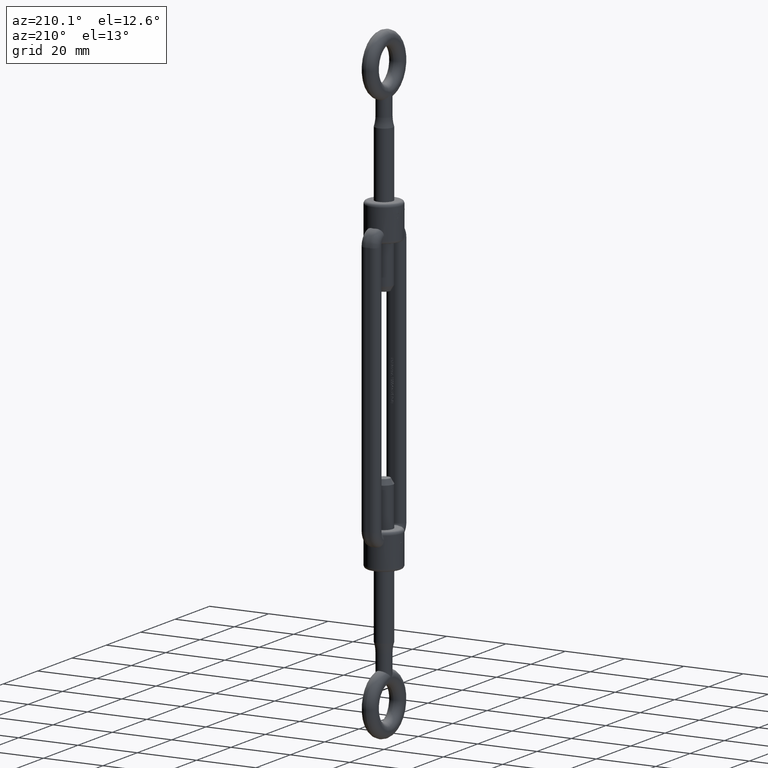
[diagram: clean part render]
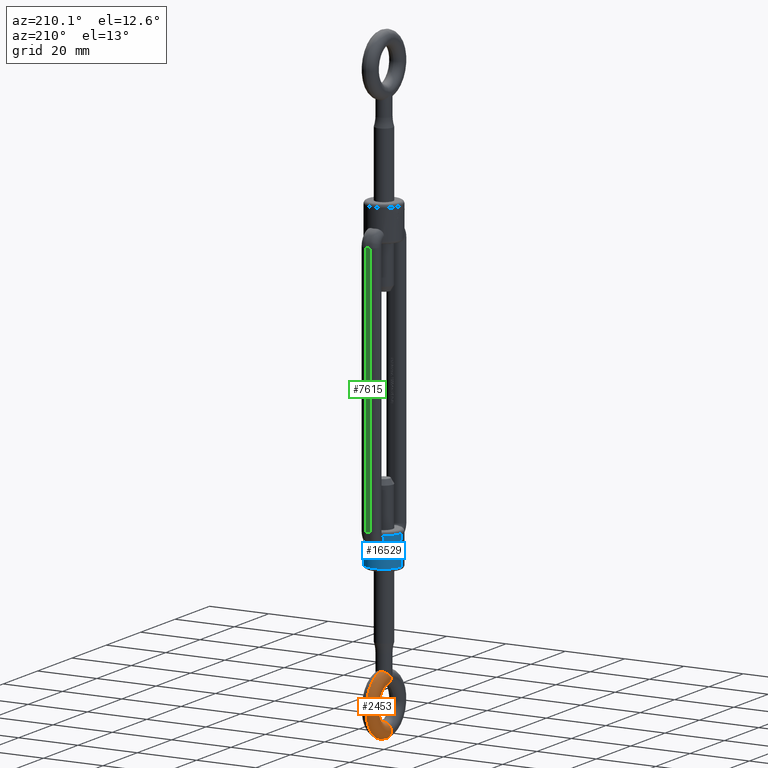
[diagram: same view with three faces highlighted in distinct colors, each labeled with its STEP entity id]
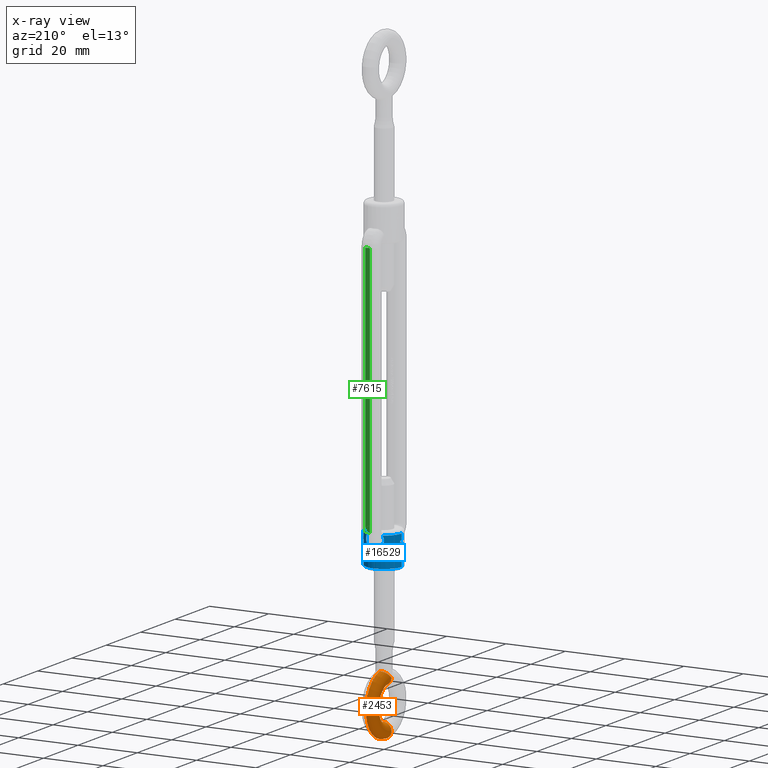
[diagram: x-ray of the same camera — body ghosted, the three highlighted faces saturated]
A machine part, auxiliary view with three faces highlighted in distinct colors.
The next image is the same camera in x-ray (body ghosted, the three faces saturated) — at least one of them is partly hidden behind the body in this view.
Their STEP definitions:

[orange] entity #2453 — the highlighted toroidal blend (fillet) surface has major radius 8 mm and minor (blend) radius 2.5 mm.
#222 = CARTESIAN_POINT ( 'NONE',  ( -2.327547646540467400, -20.56205276320210400, -0.9307047033960486000 ) ) ;
#398 = CIRCLE ( 'NONE', #6131, 5.500000000000000000 ) ;
#546 = DIRECTION ( 'NONE',  ( -0.0000000000000000000, 1.423099621949589700E-016, -1.000000000000000000 ) ) ;
#1265 = ORIENTED_EDGE ( 'NONE', *, *, #19831, .F. ) ;
#1370 = VERTEX_POINT ( 'NONE', #3618 ) ;
#1691 = EDGE_LOOP ( 'NONE', ( #1265, #4481, #13903, #19373, #2794 ) ) ;
#1837 = CARTESIAN_POINT ( 'NONE',  ( 1.242455925723093600E-026, -18.50000000000000400, -2.500000000000001300 ) ) ;
#1910 = CARTESIAN_POINT ( 'NONE',  ( -0.9647630627463545900, -19.41358719484026100, -2.310989940120803600 ) ) ;
#1917 = AXIS2_PLACEMENT_3D ( 'NONE', #17241, #546, #14643 ) ;
#2021 = CARTESIAN_POINT ( 'NONE',  ( 6.735557395310442000E-016, -16.00000000000000400, -8.323179977728349900E-016 ) ) ;
#2045 = CARTESIAN_POINT ( 'NONE',  ( -2.166660555568894300, -20.43331326164225800, -1.260663051247829400 ) ) ;
#2453 = ADVANCED_FACE ( 'NONE', ( #5384 ), #15342, .T. ) ;
#2720 = DIRECTION ( 'NONE',  ( -1.224646799147353900E-016, 1.000000000000000000, 0.0000000000000000000 ) ) ;
#2794 = ORIENTED_EDGE ( 'NONE', *, *, #5189, .F. ) ;
#2873 = CIRCLE ( 'NONE', #5161, 2.499999999999998700 ) ;
#2945 = VERTEX_POINT ( 'NONE', #3779 ) ;
#3268 = CIRCLE ( 'NONE', #13405, 2.500000000000000000 ) ;
#3618 = CARTESIAN_POINT ( 'NONE',  ( 0.0000000000000000000, -5.000000000000000900, -8.323179977728334100E-016 ) ) ;
#3779 = CARTESIAN_POINT ( 'NONE',  ( 0.0000000000000000000, -2.168404344971008900E-016, 3.557749054873973800E-016 ) ) ;
#4382 = DIRECTION ( 'NONE',  ( 1.000000000000000000, 1.224646799147353200E-016, 1.742794396888373400E-032 ) ) ;
#4481 = ORIENTED_EDGE ( 'NONE', *, *, #15393, .T. ) ;
#5161 = AXIS2_PLACEMENT_3D ( 'NONE', #20163, #4382, #2720 ) ;
#5189 = EDGE_CURVE ( 'NONE', #18958, #13609, #2873, .T. ) ;
#5384 = FACE_OUTER_BOUND ( 'NONE', #1691, .T. ) ;
#5736 = DIRECTION ( 'NONE',  ( 0.0000000000000000000, 0.0000000000000000000, 1.000000000000000000 ) ) ;
#5809 = DIRECTION ( 'NONE',  ( -1.000000000000000000, 0.0000000000000000000, 0.0000000000000000000 ) ) ;
#5879 = CARTESIAN_POINT ( 'NONE',  ( 0.0000000000000000000, -2.500000000000000400, 0.0000000000000000000 ) ) ;
#6131 = AXIS2_PLACEMENT_3D ( 'NONE', #13466, #7234, #15089 ) ;
#6440 = CARTESIAN_POINT ( 'NONE',  ( 0.0000000000000000000, -10.50000000000000000, -1.138479697559672000E-015 ) ) ;
#6626 = CARTESIAN_POINT ( 'NONE',  ( -0.5501729161815849300, -19.03616291803431100, -2.456232652786906300 ) ) ;
#7234 = DIRECTION ( 'NONE',  ( -0.0000000000000000000, 1.423099621949589700E-016, -1.000000000000000000 ) ) ;
#8026 = CARTESIAN_POINT ( 'NONE',  ( -2.500000000000000000, -20.69803902718557300, -2.306285314645109500E-015 ) ) ;
#8443 = DIRECTION ( 'NONE',  ( -0.0000000000000000000, 1.423099621949589700E-016, -1.000000000000000000 ) ) ;
#8672 = VERTEX_POINT ( 'NONE', #17648 ) ;
#9562 = CARTESIAN_POINT ( 'NONE',  ( 1.242455925723093600E-026, -18.50000000000000400, -2.500000000000001300 ) ) ;
#9854 = EDGE_CURVE ( 'NONE', #2945, #1370, #3268, .T. ) ;
#9891 = CARTESIAN_POINT ( 'NONE',  ( -1.739907591435805800, -20.08380192604825300, -1.802400801215942700 ) ) ;
#10025 = CARTESIAN_POINT ( 'NONE',  ( -0.2738770264753495600, -18.77375606901432200, -2.500000000000001300 ) ) ;
#10051 = DIRECTION ( 'NONE',  ( 0.0000000000000000000, 1.000000000000000000, 1.423099621949589700E-016 ) ) ;
#11359 = CARTESIAN_POINT ( 'NONE',  ( -2.390347946638955000, -20.61171276969795900, -0.7563906731936904700 ) ) ;
#11488 = EDGE_CURVE ( 'NONE', #13609, #1370, #398, .T. ) ;
#13067 = CARTESIAN_POINT ( 'NONE',  ( -1.366254003451748100, -19.76679053576814800, -2.099151008986415600 ) ) ;
#13197 = CARTESIAN_POINT ( 'NONE',  ( -2.071222377699466900, -20.35632469518800400, -1.410532617310862800 ) ) ;
#13405 = AXIS2_PLACEMENT_3D ( 'NONE', #5879, #5809, #5736 ) ;
#13466 = CARTESIAN_POINT ( 'NONE',  ( 0.0000000000000000000, -10.50000000000000000, -8.323179977728336100E-016 ) ) ;
#13609 = VERTEX_POINT ( 'NONE', #2021 ) ;
#13903 = ORIENTED_EDGE ( 'NONE', *, *, #9854, .T. ) ;
#14643 = DIRECTION ( 'NONE',  ( 0.0000000000000000000, 1.000000000000000000, 1.423099621949589700E-016 ) ) ;
#15026 = B_SPLINE_CURVE_WITH_KNOTS ( 'NONE', 3,
 ( #8026, #19233, #19448, #11359, #222, #2045, #13197, #17717, #9891, #17984, #13067, #16287, #1910, #6626, #10025, #1837 ),
 .UNSPECIFIED., .F., .F.,
 ( 4, 2, 2, 2, 2, 2, 2, 4 ),
 ( 0.004619430297724310400, 0.005200282634343219100, 0.005781134970962127800, 0.006361987307581036500, 0.006942839644199944400, 0.007523691980818852200, 0.008104544317437761800, 0.009266248990675577500 ),
 .UNSPECIFIED. ) ;
#15089 = DIRECTION ( 'NONE',  ( 0.0000000000000000000, 1.000000000000000000, 1.423099621949589700E-016 ) ) ;
#15130 = CIRCLE ( 'NONE', #1917, 10.50000000000000000 ) ;
#15342 = TOROIDAL_SURFACE ( 'NONE', #20265, 8.000000000000000000, 2.500000000000000000 ) ;
#15393 = EDGE_CURVE ( 'NONE', #8672, #2945, #15130, .T. ) ;
#16287 = CARTESIAN_POINT ( 'NONE',  ( -1.101985763522318700, -19.53576864438944200, -2.249158139720449400 ) ) ;
#17241 = CARTESIAN_POINT ( 'NONE',  ( 0.0000000000000000000, -10.50000000000000000, -1.138479697559672000E-015 ) ) ;
#17648 = CARTESIAN_POINT ( 'NONE',  ( -2.500000000000000000, -20.69803902718557300, -2.306285314645109500E-015 ) ) ;
#17717 = CARTESIAN_POINT ( 'NONE',  ( -1.858608092154476300, -20.18221606494365300, -1.680815386102461100 ) ) ;
#17984 = CARTESIAN_POINT ( 'NONE',  ( -1.494314538937532100, -19.87655429876848200, -2.010709112149176900 ) ) ;
#18958 = VERTEX_POINT ( 'NONE', #9562 ) ;
#19233 = CARTESIAN_POINT ( 'NONE',  ( -2.500000000000000400, -20.69803902718557600, -0.1921724619304240600 ) ) ;
#19373 = ORIENTED_EDGE ( 'NONE', *, *, #11488, .F. ) ;
#19448 = CARTESIAN_POINT ( 'NONE',  ( -2.477034110257168900, -20.68006452606093500, -0.3875463496382761100 ) ) ;
#19831 = EDGE_CURVE ( 'NONE', #8672, #18958, #15026, .T. ) ;
#20163 = CARTESIAN_POINT ( 'NONE',  ( 9.797174393178825700E-016, -18.50000000000000400, -2.276959395119343900E-015 ) ) ;
#20265 = AXIS2_PLACEMENT_3D ( 'NONE', #6440, #8443, #10051 ) ;

[blue] entity #16529 — the highlighted cylindrical surface (edge-blend (fillet) strip) has radius 6 mm, axis along (0, 0, 1).
#27 = CARTESIAN_POINT ( 'NONE',  ( 3.006789111494902100, 5.192295254808551700, -45.43910314158556200 ) ) ;
#66 = ORIENTED_EDGE ( 'NONE', *, *, #15289, .T. ) ;
#127 = DIRECTION ( 'NONE',  ( 0.0000000000000000000, 0.0000000000000000000, -1.000000000000000000 ) ) ;
#258 = VERTEX_POINT ( 'NONE', #5284 ) ;
#455 = EDGE_CURVE ( 'NONE', #18434, #258, #9113, .T. ) ;
#645 = ORIENTED_EDGE ( 'NONE', *, *, #3247, .T. ) ;
#702 = CARTESIAN_POINT ( 'NONE',  ( -2.960064717902252800, 5.219035171797260700, -45.97723860830461000 ) ) ;
#1077 = CARTESIAN_POINT ( 'NONE',  ( 0.7500000000000015500, 5.952940449895337800, -47.64159737816589800 ) ) ;
#1309 = B_SPLINE_CURVE_WITH_KNOTS ( 'NONE', 3,
 ( #17066, #4629, #4696, #27, #12492, #2977, #14062, #17270, #18837, #8307, #3311, #16102, #3596, #19254, #1856, #8107, #12819, #16236 ),
 .UNSPECIFIED., .F., .F.,
 ( 4, 2, 2, 2, 2, 2, 2, 2, 4 ),
 ( 2.166501582897853700E-007, 0.001282598035847469100, 0.001923788728692069000, 0.002564979421536669100, 0.002885574767958960000, 0.003206170114381251400, 0.003847360807225832800, 0.004488551500070414200, 0.005129742192914996100 ),
 .UNSPECIFIED. ) ;
#1353 = CARTESIAN_POINT ( 'NONE',  ( -0.2467301389833180800, 6.000139150529713000, -47.62342106420450700 ) ) ;
#1427 = CARTESIAN_POINT ( 'NONE',  ( 0.2534520981116371000, 5.999858966772884500, -47.62353043668468900 ) ) ;
#1579 = DIRECTION ( 'NONE',  ( 0.0000000000000000000, 0.0000000000000000000, 1.000000000000000000 ) ) ;
#1617 = LINE ( 'NONE', #11954, #6839 ) ;
#1643 = CARTESIAN_POINT ( 'NONE',  ( 2.647647802095501200, 5.384232639481597400, -44.00000000000000000 ) ) ;
#1856 = CARTESIAN_POINT ( 'NONE',  ( 1.586965489537352800, 5.790106175979371300, -47.54096269680395900 ) ) ;
#1939 = CIRCLE ( 'NONE', #12197, 6.000000000000008900 ) ;
#2175 = EDGE_CURVE ( 'NONE', #19600, #7028, #1939, .T. ) ;
#2211 = DIRECTION ( 'NONE',  ( -1.000000000000000000, 0.0000000000000000000, 0.0000000000000000000 ) ) ;
#2220 = CARTESIAN_POINT ( 'NONE',  ( -1.780751197024107900, 5.732795511912034000, -47.46783385374885000 ) ) ;
#2428 = CARTESIAN_POINT ( 'NONE',  ( -2.139499387634895100, 5.608793237177804900, -47.26842114431988800 ) ) ;
#2610 = CARTESIAN_POINT ( 'NONE',  ( -5.933009100570255400, 0.8940934025875867400, -46.00000000000000000 ) ) ;
#2735 = DIRECTION ( 'NONE',  ( 1.000000000000000000, 0.0000000000000000000, 0.0000000000000000000 ) ) ;
#2736 = VERTEX_POINT ( 'NONE', #18402 ) ;
#2977 = CARTESIAN_POINT ( 'NONE',  ( 2.945415158984745500, 5.227405318499184400, -46.08118356738097500 ) ) ;
#3247 = EDGE_CURVE ( 'NONE', #14918, #5177, #17067, .T. ) ;
#3311 = CARTESIAN_POINT ( 'NONE',  ( 2.518899704307321600, 5.446201719094948300, -46.91376766499574600 ) ) ;
#3596 = CARTESIAN_POINT ( 'NONE',  ( 2.143290492561867700, 5.607358268053872100, -47.26585826454374500 ) ) ;
#3730 = ORIENTED_EDGE ( 'NONE', *, *, #12701, .T. ) ;
#3765 = EDGE_CURVE ( 'NONE', #10725, #2736, #18501, .T. ) ;
#3947 = CARTESIAN_POINT ( 'NONE',  ( -0.7500000000000015500, 5.952940449895337800, -47.64159737816589800 ) ) ;
#4122 = FACE_OUTER_BOUND ( 'NONE', #12958, .T. ) ;
#4184 = CIRCLE ( 'NONE', #20346, 6.000000000000008900 ) ;
#4542 = CARTESIAN_POINT ( 'NONE',  ( -0.7500000000000015500, 5.952940449895337800, -47.64159737816589800 ) ) ;
#4594 = CIRCLE ( 'NONE', #4947, 6.000000000000008900 ) ;
#4629 = CARTESIAN_POINT ( 'NONE',  ( 2.800019534227934100, 5.309305215520879500, -44.39460956904219600 ) ) ;
#4696 = CARTESIAN_POINT ( 'NONE',  ( 2.937398188807675700, 5.232067944592823300, -44.79533901303742700 ) ) ;
#4880 = CARTESIAN_POINT ( 'NONE',  ( 0.0000000000000000000, -1.450913607213289900E-017, -46.62820512820513100 ) ) ;
#4947 = AXIS2_PLACEMENT_3D ( 'NONE', #9657, #127, #12652 ) ;
#5177 = VERTEX_POINT ( 'NONE', #18722 ) ;
#5284 = CARTESIAN_POINT ( 'NONE',  ( -2.647647802106354800, 5.384232639476260300, -44.00000000000000000 ) ) ;
#5405 = CARTESIAN_POINT ( 'NONE',  ( -6.000000000000008900, 7.202789434162801200E-016, 43.00000000000000000 ) ) ;
#5472 = DIRECTION ( 'NONE',  ( 0.0000000000000000000, 0.0000000000000000000, -1.000000000000000000 ) ) ;
#5481 = CARTESIAN_POINT ( 'NONE',  ( -2.937028009429673700, 5.232118848946893900, -46.08331505875864300 ) ) ;
#5617 = CARTESIAN_POINT ( 'NONE',  ( -3.006750691557123800, 5.192315499144678300, -45.44067078650117300 ) ) ;
#5800 = ORIENTED_EDGE ( 'NONE', *, *, #12941, .F. ) ;
#6125 = CARTESIAN_POINT ( 'NONE',  ( 0.0000000000000000000, -1.450913607213289900E-017, -46.00000000000000000 ) ) ;
#6217 = VERTEX_POINT ( 'NONE', #15492 ) ;
#6281 = AXIS2_PLACEMENT_3D ( 'NONE', #17107, #20310, #2735 ) ;
#6315 = VERTEX_POINT ( 'NONE', #6435 ) ;
#6435 = CARTESIAN_POINT ( 'NONE',  ( -6.000000000000008900, 7.202789434162801200E-016, -44.00000000000000000 ) ) ;
#6691 = EDGE_CURVE ( 'NONE', #12181, #18434, #8447, .T. ) ;
#6839 = VECTOR ( 'NONE', #13244, 1000.000000000000000 ) ;
#7028 = VERTEX_POINT ( 'NONE', #8767 ) ;
#7507 = CARTESIAN_POINT ( 'NONE',  ( -0.7500000000000015500, 5.952940449895337800, -47.64159737816589800 ) ) ;
#8107 = CARTESIAN_POINT ( 'NONE',  ( 1.179724464645115500, 5.886598269086720200, -47.63311720288319200 ) ) ;
#8189 = LINE ( 'NONE', #17261, #20302 ) ;
#8307 = CARTESIAN_POINT ( 'NONE',  ( 2.583220519880358600, 5.415825609758909900, -46.83352028015509200 ) ) ;
#8374 = VERTEX_POINT ( 'NONE', #10439 ) ;
#8447 = B_SPLINE_CURVE_WITH_KNOTS ( 'NONE', 3,
 ( #1077, #15396, #1427, #1353, #9341, #4542 ),
 .UNSPECIFIED., .F., .F.,
 ( 4, 2, 4 ),
 ( 0.02225280933312096000, 0.02300359912622378800, 0.02375438891932661300 ),
 .UNSPECIFIED. ) ;
#8669 = CARTESIAN_POINT ( 'NONE',  ( -2.585578421057397800, 5.416492610243453000, -46.84347446244593300 ) ) ;
#8740 = CARTESIAN_POINT ( 'NONE',  ( -0.9651402668200392800, 5.925835324038105900, -47.65189275775181000 ) ) ;
#8767 = CARTESIAN_POINT ( 'NONE',  ( 6.000000000000008900, -1.450913607213289900E-017, -44.00000000000000000 ) ) ;
#9113 = B_SPLINE_CURVE_WITH_KNOTS ( 'NONE', 3,
 ( #3947, #8740, #15073, #19818, #2220, #2428, #16540, #8669, #19758, #11836, #13386, #5481, #702, #13325, #5617, #18304, #13527, #16729 ),
 .UNSPECIFIED., .F., .F.,
 ( 4, 2, 2, 2, 2, 2, 2, 2, 4 ),
 ( 1.989487527446713900E-007, 0.0006422322189905869100, 0.001284265489228429200, 0.001926298759466271500, 0.002568332029704113700, 0.002889348664823034200, 0.003210365299941954700, 0.003852398570179795200, 0.005136465110655476700 ),
 .UNSPECIFIED. ) ;
#9341 = CARTESIAN_POINT ( 'NONE',  ( -0.4996251663170926400, 5.984484713917914300, -47.62961587424001000 ) ) ;
#9657 = CARTESIAN_POINT ( 'NONE',  ( 0.0000000000000000000, -1.450913607213289900E-017, -44.00000000000000000 ) ) ;
#9669 = DIRECTION ( 'NONE',  ( -0.0000000000000000000, -0.0000000000000000000, 1.000000000000000000 ) ) ;
#9944 = AXIS2_PLACEMENT_3D ( 'NONE', #6125, #12655, #10994 ) ;
#10439 = CARTESIAN_POINT ( 'NONE',  ( 6.000000000000008900, -1.450913607213289900E-017, -53.99999999999999300 ) ) ;
#10565 = ORIENTED_EDGE ( 'NONE', *, *, #19951, .F. ) ;
#10725 = VERTEX_POINT ( 'NONE', #13461 ) ;
#10994 = DIRECTION ( 'NONE',  ( -0.9928495050826118300, -0.1193727785435720200, 0.0000000000000000000 ) ) ;
#11103 = ORIENTED_EDGE ( 'NONE', *, *, #18947, .F. ) ;
#11509 = LINE ( 'NONE', #15331, #11992 ) ;
#11762 = CARTESIAN_POINT ( 'NONE',  ( 0.0000000000000000000, -1.450913607213289900E-017, -44.00000000000000000 ) ) ;
#11836 = CARTESIAN_POINT ( 'NONE',  ( -2.838942773334228100, 5.286108378082667000, -46.38542160062279900 ) ) ;
#11954 = CARTESIAN_POINT ( 'NONE',  ( 6.000000000000008900, -1.450913607213289900E-017, 43.00000000000000000 ) ) ;
#11992 = VECTOR ( 'NONE', #18607, 1000.000000000000000 ) ;
#12181 = VERTEX_POINT ( 'NONE', #16629 ) ;
#12187 = CARTESIAN_POINT ( 'NONE',  ( 0.0000000000000000000, -1.450913607213289900E-017, -53.99999999999999300 ) ) ;
#12197 = AXIS2_PLACEMENT_3D ( 'NONE', #11762, #5472, #2211 ) ;
#12492 = CARTESIAN_POINT ( 'NONE',  ( 3.006490657149720700, 5.192518729010240400, -45.65338916288283900 ) ) ;
#12652 = DIRECTION ( 'NONE',  ( -1.000000000000000000, 0.0000000000000000000, 0.0000000000000000000 ) ) ;
#12655 = DIRECTION ( 'NONE',  ( -0.0000000000000000000, -0.0000000000000000000, 1.000000000000000000 ) ) ;
#12701 = EDGE_CURVE ( 'NONE', #6315, #258, #4594, .T. ) ;
#12725 = DIRECTION ( 'NONE',  ( -0.9998881421979226600, -0.01495670725751207000, 0.0000000000000000000 ) ) ;
#12819 = CARTESIAN_POINT ( 'NONE',  ( 0.9650953604838129500, 5.925840981704809000, -47.65189060879235700 ) ) ;
#12941 = EDGE_CURVE ( 'NONE', #8374, #7028, #1617, .T. ) ;
#12958 = EDGE_LOOP ( 'NONE', ( #66, #20227, #10565, #13129, #645, #13769, #3730, #17044, #18318, #11103, #16602, #5800 ) ) ;
#13129 = ORIENTED_EDGE ( 'NONE', *, *, #15641, .T. ) ;
#13244 = DIRECTION ( 'NONE',  ( -0.0000000000000000000, -0.0000000000000000000, 1.000000000000000000 ) ) ;
#13325 = CARTESIAN_POINT ( 'NONE',  ( -3.006026016382793700, 5.192788520952488400, -45.65923896244575500 ) ) ;
#13386 = CARTESIAN_POINT ( 'NONE',  ( -2.876389095800481900, 5.265699093875371200, -46.28729861658225500 ) ) ;
#13461 = CARTESIAN_POINT ( 'NONE',  ( -6.000000000000008900, 7.202789434162801200E-016, -53.99999999999999300 ) ) ;
#13527 = CARTESIAN_POINT ( 'NONE',  ( -2.800668084150551800, 5.308986296950156900, -44.39628917195786100 ) ) ;
#13769 = ORIENTED_EDGE ( 'NONE', *, *, #17472, .T. ) ;
#14062 = CARTESIAN_POINT ( 'NONE',  ( 2.885886852020087500, 5.261354204090056700, -46.28475913905556600 ) ) ;
#14367 = AXIS2_PLACEMENT_3D ( 'NONE', #4880, #9669, #12725 ) ;
#14824 = VECTOR ( 'NONE', #16396, 1000.000000000000000 ) ;
#14918 = VERTEX_POINT ( 'NONE', #2610 ) ;
#15073 = CARTESIAN_POINT ( 'NONE',  ( -1.175002378236738000, 5.887585423306048500, -47.63384109583812200 ) ) ;
#15289 = EDGE_CURVE ( 'NONE', #8374, #10725, #4184, .T. ) ;
#15331 = CARTESIAN_POINT ( 'NONE',  ( -6.000000000000008900, 7.202789434162801200E-016, 43.00000000000000000 ) ) ;
#15396 = CARTESIAN_POINT ( 'NONE',  ( 0.5023254682714813900, 5.984144507849528300, -47.62974509520837800 ) ) ;
#15492 = CARTESIAN_POINT ( 'NONE',  ( -5.933009100570254500, 0.8940934025875849600, -46.62820512820513100 ) ) ;
#15641 = EDGE_CURVE ( 'NONE', #6217, #14918, #8189, .T. ) ;
#16092 = CYLINDRICAL_SURFACE ( 'NONE', #6281, 6.000000000000008900 ) ;
#16102 = CARTESIAN_POINT ( 'NONE',  ( 2.307299012493389000, 5.540780342936116700, -47.13899643784969800 ) ) ;
#16236 = CARTESIAN_POINT ( 'NONE',  ( 0.7500000000000015500, 5.952940449895337800, -47.64159737816589800 ) ) ;
#16396 = DIRECTION ( 'NONE',  ( -0.0000000000000000000, -0.0000000000000000000, 1.000000000000000000 ) ) ;
#16529 = ADVANCED_FACE ( 'NONE', ( #4122 ), #16092, .T. ) ;
#16540 = CARTESIAN_POINT ( 'NONE',  ( -2.304958704577128700, 5.541730175536673500, -47.14079233760907800 ) ) ;
#16602 = ORIENTED_EDGE ( 'NONE', *, *, #2175, .T. ) ;
#16629 = CARTESIAN_POINT ( 'NONE',  ( 0.7500000000000015500, 5.952940449895337800, -47.64159737816589800 ) ) ;
#16729 = CARTESIAN_POINT ( 'NONE',  ( -2.647647802106354800, 5.384232639476260300, -44.00000000000000000 ) ) ;
#17044 = ORIENTED_EDGE ( 'NONE', *, *, #455, .F. ) ;
#17066 = CARTESIAN_POINT ( 'NONE',  ( 2.647647802095501200, 5.384232639481597400, -44.00000000000000000 ) ) ;
#17067 = CIRCLE ( 'NONE', #9944, 6.000000000000010700 ) ;
#17107 = CARTESIAN_POINT ( 'NONE',  ( 0.0000000000000000000, -1.450913607213289900E-017, 43.00000000000000000 ) ) ;
#17261 = CARTESIAN_POINT ( 'NONE',  ( -5.933009100570254500, 0.8940934025875849600, -46.62820512820513100 ) ) ;
#17270 = CARTESIAN_POINT ( 'NONE',  ( 2.751915404549499100, 5.331932984584224900, -46.57028028939991800 ) ) ;
#17472 = EDGE_CURVE ( 'NONE', #5177, #6315, #11509, .T. ) ;
#17742 = CIRCLE ( 'NONE', #14367, 6.000000000000009800 ) ;
#18304 = CARTESIAN_POINT ( 'NONE',  ( -2.938385424695630000, 5.231505610365313300, -44.80068779009798200 ) ) ;
#18318 = ORIENTED_EDGE ( 'NONE', *, *, #6691, .F. ) ;
#18402 = CARTESIAN_POINT ( 'NONE',  ( -6.000000000000008900, 7.202789434162801200E-016, -46.62820512820513100 ) ) ;
#18434 = VERTEX_POINT ( 'NONE', #7507 ) ;
#18501 = LINE ( 'NONE', #5405, #14824 ) ;
#18526 = DIRECTION ( 'NONE',  ( -0.0000000000000000000, -0.0000000000000000000, 1.000000000000000000 ) ) ;
#18607 = DIRECTION ( 'NONE',  ( -0.0000000000000000000, -0.0000000000000000000, 1.000000000000000000 ) ) ;
#18722 = CARTESIAN_POINT ( 'NONE',  ( -6.000000000000008900, 7.202789434162801200E-016, -46.00000000000000000 ) ) ;
#18837 = CARTESIAN_POINT ( 'NONE',  ( 2.699534470347790800, 5.358797340173955700, -46.66224462245956800 ) ) ;
#18947 = EDGE_CURVE ( 'NONE', #19600, #12181, #1309, .T. ) ;
#19254 = CARTESIAN_POINT ( 'NONE',  ( 1.783913712234231900, 5.731824556728939900, -47.46652278982664800 ) ) ;
#19600 = VERTEX_POINT ( 'NONE', #1643 ) ;
#19758 = CARTESIAN_POINT ( 'NONE',  ( -2.705202318175254500, 5.356494360880864400, -46.66855899341486900 ) ) ;
#19818 = CARTESIAN_POINT ( 'NONE',  ( -1.584637498173551200, 5.790787226705029800, -47.54182828196157100 ) ) ;
#19951 = EDGE_CURVE ( 'NONE', #6217, #2736, #17742, .T. ) ;
#20227 = ORIENTED_EDGE ( 'NONE', *, *, #3765, .T. ) ;
#20254 = DIRECTION ( 'NONE',  ( 1.000000000000000000, 0.0000000000000000000, 0.0000000000000000000 ) ) ;
#20302 = VECTOR ( 'NONE', #1579, 1000.000000000000000 ) ;
#20310 = DIRECTION ( 'NONE',  ( -0.0000000000000000000, -0.0000000000000000000, 1.000000000000000000 ) ) ;
#20346 = AXIS2_PLACEMENT_3D ( 'NONE', #12187, #18526, #20254 ) ;

[green] entity #7615 — the highlighted planar face has unit normal (0, 1, 0).
#381 = CARTESIAN_POINT ( 'NONE',  ( -0.7500000000000015500, 9.499999999999987600, 42.49999999999998600 ) ) ;
#602 = EDGE_CURVE ( 'NONE', #3398, #12448, #9172, .T. ) ;
#839 = EDGE_CURVE ( 'NONE', #9859, #10305, #12874, .T. ) ;
#3398 = VERTEX_POINT ( 'NONE', #4874 ) ;
#3546 = CARTESIAN_POINT ( 'NONE',  ( -0.7500000000000015500, 9.499999999999987600, 42.49999999999998600 ) ) ;
#3954 = ORIENTED_EDGE ( 'NONE', *, *, #11932, .F. ) ;
#4646 = DIRECTION ( 'NONE',  ( 1.000000000000000000, 0.0000000000000000000, 0.0000000000000000000 ) ) ;
#4874 = CARTESIAN_POINT ( 'NONE',  ( -0.7500000000000015500, 9.499999999999987600, 42.49999999999998600 ) ) ;
#4951 = VECTOR ( 'NONE', #8330, 1000.000000000000000 ) ;
#7096 = CARTESIAN_POINT ( 'NONE',  ( -0.7500000000000015500, 9.499999999999987600, 42.49999999999998600 ) ) ;
#7152 = VECTOR ( 'NONE', #10736, 1000.000000000000000 ) ;
#7597 = EDGE_CURVE ( 'NONE', #3398, #9859, #8055, .T. ) ;
#7615 = ADVANCED_FACE ( 'NONE', ( #12272 ), #18057, .T. ) ;
#7625 = CARTESIAN_POINT ( 'NONE',  ( 0.7500000000000015500, 9.499999999999987600, 42.49999999999998600 ) ) ;
#7640 = EDGE_LOOP ( 'NONE', ( #10585, #10422, #3954, #10740 ) ) ;
#8055 = LINE ( 'NONE', #381, #16477 ) ;
#8330 = DIRECTION ( 'NONE',  ( 0.0000000000000000000, 2.040851148208008500E-017, -1.000000000000000000 ) ) ;
#8553 = DIRECTION ( 'NONE',  ( -0.0000000000000000000, 1.000000000000000000, 2.040851148208008500E-017 ) ) ;
#9172 = LINE ( 'NONE', #3546, #4951 ) ;
#9817 = LINE ( 'NONE', #11118, #14295 ) ;
#9859 = VERTEX_POINT ( 'NONE', #16993 ) ;
#9950 = CARTESIAN_POINT ( 'NONE',  ( 0.7500000000000015500, 9.499999999999989300, -42.50000000000000000 ) ) ;
#10305 = VERTEX_POINT ( 'NONE', #9950 ) ;
#10422 = ORIENTED_EDGE ( 'NONE', *, *, #839, .T. ) ;
#10585 = ORIENTED_EDGE ( 'NONE', *, *, #7597, .T. ) ;
#10736 = DIRECTION ( 'NONE',  ( 0.0000000000000000000, 2.040851148208008500E-017, -1.000000000000000000 ) ) ;
#10740 = ORIENTED_EDGE ( 'NONE', *, *, #602, .F. ) ;
#11037 = AXIS2_PLACEMENT_3D ( 'NONE', #7096, #8553, #13544 ) ;
#11118 = CARTESIAN_POINT ( 'NONE',  ( -0.7500000000000015500, 9.499999999999989300, -42.50000000000000000 ) ) ;
#11932 = EDGE_CURVE ( 'NONE', #12448, #10305, #9817, .T. ) ;
#12272 = FACE_OUTER_BOUND ( 'NONE', #7640, .T. ) ;
#12448 = VERTEX_POINT ( 'NONE', #13608 ) ;
#12874 = LINE ( 'NONE', #7625, #7152 ) ;
#13544 = DIRECTION ( 'NONE',  ( 0.0000000000000000000, -2.040851148208008500E-017, 1.000000000000000000 ) ) ;
#13608 = CARTESIAN_POINT ( 'NONE',  ( -0.7500000000000015500, 9.499999999999989300, -42.50000000000000000 ) ) ;
#14295 = VECTOR ( 'NONE', #4646, 1000.000000000000000 ) ;
#16292 = DIRECTION ( 'NONE',  ( 1.000000000000000000, 0.0000000000000000000, 0.0000000000000000000 ) ) ;
#16477 = VECTOR ( 'NONE', #16292, 1000.000000000000000 ) ;
#16993 = CARTESIAN_POINT ( 'NONE',  ( 0.7500000000000015500, 9.499999999999987600, 42.49999999999998600 ) ) ;
#18057 = PLANE ( 'NONE',  #11037 ) ;